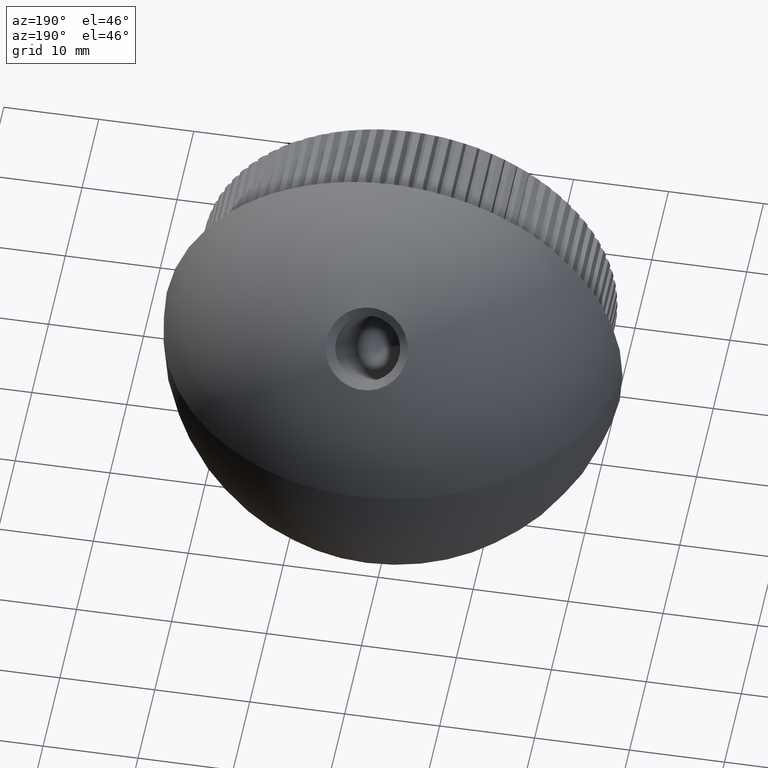
[diagram: clean part render]
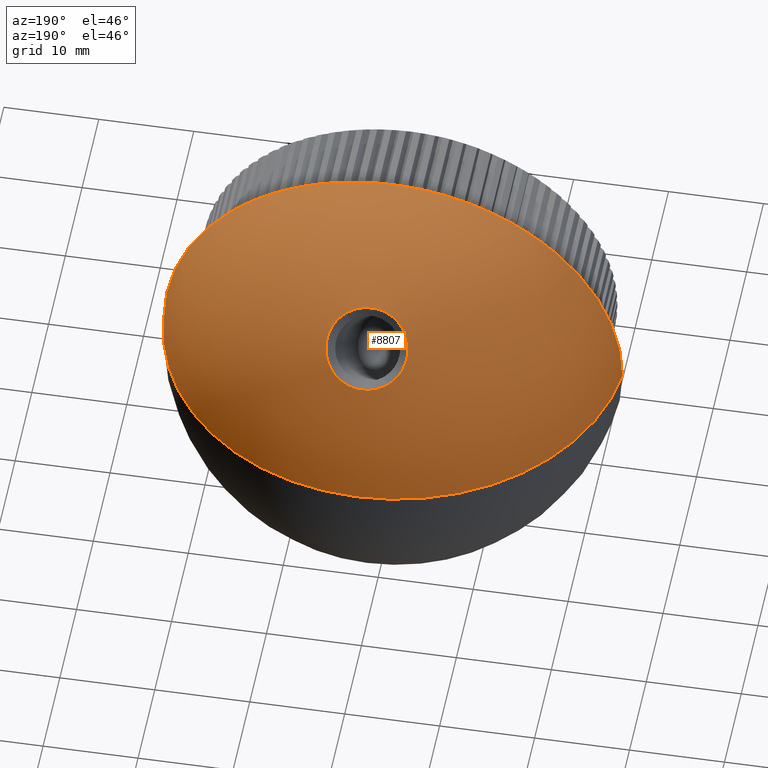
[diagram: same view with one face highlighted and labeled with its STEP entity id]
A machine part, auxiliary view. The second image highlights one B-rep face of the part: STEP entity #8807.
In plain terms, the highlighted spherical surface has radius 24.2551 mm.
Its self-contained STEP definition (entity closure, byte-faithful):
#33 = CARTESIAN_POINT ( 'NONE',  ( 0.06396000808462339000, 29.58473959694004700, 12.41317968367604000 ) ) ;
#41 = EDGE_LOOP ( 'NONE', ( #12607, #7142 ) ) ;
#122 = CARTESIAN_POINT ( 'NONE',  ( 3.385849470600867500, 24.98035092369791200, 17.69957835155297200 ) ) ;
#137 = AXIS2_PLACEMENT_3D ( 'NONE', #17972, #6600, #2979 ) ;
#292 = CARTESIAN_POINT ( 'NONE',  ( 3.297345926346658900, 24.90888121479206100, 17.78151869460589300 ) ) ;
#309 = CIRCLE ( 'NONE', #137, 24.14999999999999900 ) ;
#376 = CARTESIAN_POINT ( 'NONE',  ( -2.095271658431268900, 24.25705256769267800, 18.52867959444545000 ) ) ;
#834 = B_SPLINE_CURVE_WITH_KNOTS ( 'NONE', 3,
 ( #5625, #20869, #2089, #18725, #22518, #15336, #17077, #3911, #15020, #3988, #3760, #33, #1761, #13331, #3666, #7541, #17241, #9517, #20618, #11177, #2008, #24412, #13255, #13094, #20945, #5549, #1931, #18809, #7694, #15263, #9604, #20786, #15179, #9356, #7448, #17149, #20699, #5791, #16992, #13177, #22614, #11250, #24494, #1845, #22772, #9431, #15093, #18889, #22695, #7612, #3833, #22859, #5711, #18967, #11427, #122, #292, #9928, #11825, #17471 ),
 .UNSPECIFIED., .F., .F.,
 ( 4, 2, 2, 2, 2, 2, 2, 2, 2, 2, 2, 2, 2, 2, 2, 2, 2, 2, 2, 2, 2, 2, 2, 2, 2, 2, 2, 2, 2, 4 ),
 ( 0.0002891650422360298100, 0.03153918901903256900, 0.04716420100743086400, 0.06278921299582915200, 0.07841422498422742600, 0.09403923697262570000, 0.1252892609494221900, 0.1565392849262187100, 0.1877893089030152100, 0.2034143208914135100, 0.2112268268856125300, 0.2190393328798115300, 0.2502893568566075300, 0.2659143688450055800, 0.2737268748392045500, 0.2815393808334035200, 0.3127894048101989600, 0.3206019108043979800, 0.3284144167985969500, 0.3362269227927960300, 0.3440394287869950600, 0.3752894527637913300, 0.3831019587579903000, 0.3909144647521891600, 0.4065394767405873200, 0.4221644887289854300, 0.4377895007173834800, 0.4534145127057815900, 0.4690395246941797500, 0.5002895486709759700 ),
 .UNSPECIFIED. ) ;
#892 = SPHERICAL_SURFACE ( 'NONE', #10632, 24.25505681818181700 ) ;
#1101 = CARTESIAN_POINT ( 'NONE',  ( -3.009835994526920600, 28.78189510633475800, 13.33602762986384600 ) ) ;
#1265 = CARTESIAN_POINT ( 'NONE',  ( -4.255634156895891500, 27.19985814070828300, 15.15317016237359700 ) ) ;
#1353 = CARTESIAN_POINT ( 'NONE',  ( -3.835335611001223100, 25.44028997154293500, 17.17217840863929000 ) ) ;
#1362 = EDGE_CURVE ( 'NONE', #23694, #6599, #309, .T. ) ;
#1433 = CARTESIAN_POINT ( 'NONE',  ( -4.298168532005049300, 26.97059823266164400, 15.41635374875446900 ) ) ;
#1657 = DIRECTION ( 'NONE',  ( 1.000000000000000000, 0.0000000000000000000, -1.224646799147353500E-016 ) ) ;
#1761 = CARTESIAN_POINT ( 'NONE',  ( 0.3496317584474428200, 29.57563146170457800, 12.42365492636785300 ) ) ;
#1845 = CARTESIAN_POINT ( 'NONE',  ( 4.256179226310400100, 26.28457171904776500, 16.20367619151198500 ) ) ;
#1931 = CARTESIAN_POINT ( 'NONE',  ( 3.622988025002170000, 28.28278505394705500, 13.90950146017299900 ) ) ;
#2008 = CARTESIAN_POINT ( 'NONE',  ( 2.676282121115255200, 28.96680416818619400, 13.12351559193438700 ) ) ;
#2081 = FACE_OUTER_BOUND ( 'NONE', #3357, .T. ) ;
#2089 = CARTESIAN_POINT ( 'NONE',  ( -2.106197046934555700, 29.22442607509541900, 12.82740954978844500 ) ) ;
#2154 = ORIENTED_EDGE ( 'NONE', *, *, #14679, .T. ) ;
#2840 = VERTEX_POINT ( 'NONE', #19651 ) ;
#2923 = CARTESIAN_POINT ( 'NONE',  ( -3.624109006241724300, 25.19979183090059000, 17.44796872308581800 ) ) ;
#2953 = FACE_BOUND ( 'NONE', #41, .T. ) ;
#2979 = DIRECTION ( 'NONE',  ( 0.0000000000000000000, 0.0000000000000000000, -1.000000000000000000 ) ) ;
#3086 = CARTESIAN_POINT ( 'NONE',  ( -4.201419817119304200, 27.38080266415154200, 14.94542534119796800 ) ) ;
#3247 = CARTESIAN_POINT ( 'NONE',  ( -4.299223314783218600, 26.50582779492854300, 15.94978907659824300 ) ) ;
#3357 = EDGE_LOOP ( 'NONE', ( #7326, #2154, #21815 ) ) ;
#3666 = CARTESIAN_POINT ( 'NONE',  ( 1.179713620839066800, 29.47703723644549700, 12.53701566875182700 ) ) ;
#3760 = CARTESIAN_POINT ( 'NONE',  ( -0.3609526675612286800, 29.57049862251808700, 12.42955544415942400 ) ) ;
#3833 = CARTESIAN_POINT ( 'NONE',  ( 3.962663595058698400, 25.61803578517341500, 16.96832056525412500 ) ) ;
#3911 = CARTESIAN_POINT ( 'NONE',  ( -0.9166566047195821000, 29.51563179337599500, 12.49263779116108500 ) ) ;
#3988 = CARTESIAN_POINT ( 'NONE',  ( -0.4997583743947445800, 29.56132478462944500, 12.44010139627912500 ) ) ;
#4706 = DIRECTION ( 'NONE',  ( 0.0000000000000000000, 0.0000000000000000000, -1.000000000000000000 ) ) ;
#4788 = VERTEX_POINT ( 'NONE', #16937 ) ;
#4894 = CARTESIAN_POINT ( 'NONE',  ( -3.629397245437210100, 28.27636493573236400, 13.91687501319322200 ) ) ;
#4968 = EDGE_CURVE ( 'NONE', #4788, #23694, #6106, .T. ) ;
#4978 = CARTESIAN_POINT ( 'NONE',  ( -3.546637687126249700, 25.12350213749489200, 17.53544508771471700 ) ) ;
#5059 = CARTESIAN_POINT ( 'NONE',  ( -3.294942586545698500, 24.90000416985532500, 17.79170259291684900 ) ) ;
#5362 = CARTESIAN_POINT ( 'NONE',  ( 0.0000000000000000000, 8.744943181818182900, 0.0000000000000000000 ) ) ;
#5549 = CARTESIAN_POINT ( 'NONE',  ( 3.543274201555111500, 28.36104885134712500, 13.81958623420498700 ) ) ;
#5625 = CARTESIAN_POINT ( 'NONE',  ( -2.575412051545741500, 29.01728091067991500, 13.06550255539182900 ) ) ;
#5711 = CARTESIAN_POINT ( 'NONE',  ( 3.775083507062249900, 25.36600535241573700, 17.25736558641271800 ) ) ;
#5791 = CARTESIAN_POINT ( 'NONE',  ( 4.274501631833540900, 27.11607071839651800, 15.24936027048717700 ) ) ;
#6031 = CARTESIAN_POINT ( 'NONE',  ( -2.454432127121762600, 24.40419084654056900, 18.36004704181009100 ) ) ;
#6106 = CIRCLE ( 'NONE', #14602, 24.25505681818181700 ) ;
#6112 = CARTESIAN_POINT ( 'NONE',  ( 1.592139336015353300, 24.09500629815043400, 18.71438241902557200 ) ) ;
#6599 = VERTEX_POINT ( 'NONE', #23169 ) ;
#6600 = DIRECTION ( 'NONE',  ( -0.0000000000000000000, -1.000000000000000000, -0.0000000000000000000 ) ) ;
#6710 = CARTESIAN_POINT ( 'NONE',  ( -2.575412051545741500, 29.01728091067991500, 13.06550255539182900 ) ) ;
#6873 = CARTESIAN_POINT ( 'NONE',  ( -4.109117085973547700, 27.60609739322243400, 14.68673028044873700 ) ) ;
#6891 = B_SPLINE_CURVE_WITH_KNOTS ( 'NONE', 3,
 ( #17478, #21125, #9764, #6112, #15504, #19375, #8015, #9933, #23179, #11673, #23255, #10425, #376, #17410, #6031, #19297, #11760, #16312, #5059, #4978, #2923, #20033, #1353, #16401, #8845, #6953, #23924, #22107, #21856, #20206, #14433, #23997, #3247, #8601, #12672, #18235, #1433, #16234, #8918, #1265, #21941, #23836, #3086, #18308, #6873, #23750, #12745, #20116, #14356, #16152, #22190, #14609, #20295, #4894, #10839, #8770, #16485, #1101, #10754, #6710 ),
 .UNSPECIFIED., .F., .F.,
 ( 4, 2, 2, 2, 2, 2, 2, 2, 2, 2, 2, 2, 2, 2, 2, 2, 2, 2, 2, 2, 2, 2, 2, 2, 2, 2, 2, 2, 2, 4 ),
 ( 0.5002895486709759700, 0.5315395246941797500, 0.5627895007173834300, 0.6252894527637911100, 0.6565394287869950100, 0.6721644167985968400, 0.6877894048101986800, 0.7034143928218006300, 0.7190393808334024600, 0.7502893568566064700, 0.7659143448682084200, 0.7815393328798103700, 0.7971643208914123100, 0.8127893089030142600, 0.8206018029088151300, 0.8284142969146161000, 0.8440392849262177100, 0.8596642729378194400, 0.8674767669436205300, 0.8752892609494213900, 0.8831017549552222500, 0.8909142489610233400, 0.9065392369726248400, 0.9143517309784257000, 0.9221642249842265700, 0.9299767189900274300, 0.9377892129958282900, 0.9534142010074302400, 0.9690391890190321900, 1.000289165042236100 ),
 .UNSPECIFIED. ) ;
#6953 = CARTESIAN_POINT ( 'NONE',  ( -4.106813699364098900, 25.87121548401349700, 16.67791121465951000 ) ) ;
#7142 = ORIENTED_EDGE ( 'NONE', *, *, #12684, .T. ) ;
#7326 = ORIENTED_EDGE ( 'NONE', *, *, #4968, .F. ) ;
#7448 = CARTESIAN_POINT ( 'NONE',  ( 4.213395710869972900, 27.34567747918442400, 14.98575325050948900 ) ) ;
#7541 = CARTESIAN_POINT ( 'NONE',  ( 1.713896604310974500, 29.35188014620301200, 12.68088787787496900 ) ) ;
#7612 = CARTESIAN_POINT ( 'NONE',  ( 4.016064186618967500, 25.70365639427235700, 16.87011411835689500 ) ) ;
#7694 = CARTESIAN_POINT ( 'NONE',  ( 3.766282476442891300, 28.12374206268716700, 14.09219964744867700 ) ) ;
#7854 = EDGE_CURVE ( 'NONE', #21978, #2840, #834, .T. ) ;
#8015 = CARTESIAN_POINT ( 'NONE',  ( -0.06990573024943362600, 23.87675219451534400, 18.96447097749723600 ) ) ;
#8601 = CARTESIAN_POINT ( 'NONE',  ( -4.313427755305970600, 26.69295163043406300, 15.73503888354705900 ) ) ;
#8770 = CARTESIAN_POINT ( 'NONE',  ( -3.382686789689806100, 28.50359374892569500, 13.65581394023405300 ) ) ;
#8807 = ADVANCED_FACE ( 'NONE', ( #2953, #2081 ), #892, .T. ) ;
#8845 = CARTESIAN_POINT ( 'NONE',  ( -4.011477931104754400, 25.69591721365367200, 16.87899192471490700 ) ) ;
#8918 = CARTESIAN_POINT ( 'NONE',  ( -4.276316612863844600, 27.10709985562962000, 15.25965899684526400 ) ) ;
#9356 = CARTESIAN_POINT ( 'NONE',  ( 4.197814767405235500, 27.39092313882457600, 14.93380420142927500 ) ) ;
#9431 = CARTESIAN_POINT ( 'NONE',  ( 4.216959186712416300, 26.14732504207746500, 16.36114826640227400 ) ) ;
#9517 = CARTESIAN_POINT ( 'NONE',  ( 2.333144246642447700, 29.12951387485408700, 12.93650383283000800 ) ) ;
#9604 = CARTESIAN_POINT ( 'NONE',  ( 3.866210044264943400, 27.99852556466423100, 14.23603261336623800 ) ) ;
#9764 = CARTESIAN_POINT ( 'NONE',  ( 2.102028590120569500, 24.25431170639854300, 18.53182177880191600 ) ) ;
#9928 = CARTESIAN_POINT ( 'NONE',  ( 3.013603038541913900, 24.70146052428119900, 18.01931095185981500 ) ) ;
#9933 = CARTESIAN_POINT ( 'NONE',  ( -0.9091853169455220700, 23.95836224491385400, 18.87095707631329900 ) ) ;
#10425 = CARTESIAN_POINT ( 'NONE',  ( -1.968965621444745100, 24.21256288827120800, 18.57966235157509200 ) ) ;
#10632 = AXIS2_PLACEMENT_3D ( 'NONE', #22475, #11211, #15132 ) ;
#10754 = CARTESIAN_POINT ( 'NONE',  ( -2.804033596098221400, 28.90524630712347000, 13.19426979051344900 ) ) ;
#10839 = CARTESIAN_POINT ( 'NONE',  ( -3.551875316134165800, 28.35296818727603000, 13.82886957218369200 ) ) ;
#11177 = CARTESIAN_POINT ( 'NONE',  ( 2.620546722690792600, 28.99533786439683100, 13.09072206458341500 ) ) ;
#11211 = DIRECTION ( 'NONE',  ( 0.0000000000000000000, 0.0000000000000000000, 1.000000000000000000 ) ) ;
#11250 = CARTESIAN_POINT ( 'NONE',  ( 4.320265368999484300, 26.70170790373472900, 15.72499700074406600 ) ) ;
#11427 = CARTESIAN_POINT ( 'NONE',  ( 3.552435695853363400, 25.12905655967247800, 17.52907711358080400 ) ) ;
#11673 = CARTESIAN_POINT ( 'NONE',  ( -1.582623827509171100, 24.09743098260638000, 18.71160202127083800 ) ) ;
#11760 = CARTESIAN_POINT ( 'NONE',  ( -2.788343050793988400, 24.57282138805868900, 18.16676473701222200 ) ) ;
#11825 = CARTESIAN_POINT ( 'NONE',  ( 2.802748912472381400, 24.57484509526704700, 18.16444811168301900 ) ) ;
#12159 = DIRECTION ( 'NONE',  ( -1.000000000000000000, 0.0000000000000000000, 0.0000000000000000000 ) ) ;
#12607 = ORIENTED_EDGE ( 'NONE', *, *, #7854, .T. ) ;
#12672 = CARTESIAN_POINT ( 'NONE',  ( -4.313521419050783100, 26.78457999523333700, 15.62987469726177100 ) ) ;
#12684 = EDGE_CURVE ( 'NONE', #2840, #21978, #6891, .T. ) ;
#12715 = CARTESIAN_POINT ( 'NONE',  ( -2.575412051545741500, 29.01728091067991500, 13.06550255539182900 ) ) ;
#12745 = CARTESIAN_POINT ( 'NONE',  ( -4.012282779364261900, 27.78151584018591400, 14.48527581122954400 ) ) ;
#12981 = DIRECTION ( 'NONE',  ( 1.224646799147353200E-016, -0.0000000000000000000, 1.000000000000000000 ) ) ;
#13094 = CARTESIAN_POINT ( 'NONE',  ( 3.100711140508022500, 28.72192374886779800, 13.40494284556122700 ) ) ;
#13177 = CARTESIAN_POINT ( 'NONE',  ( 4.297251435015360800, 26.97796038740404600, 15.40790319620957800 ) ) ;
#13255 = CARTESIAN_POINT ( 'NONE',  ( 2.840662449513819500, 28.87672905264836800, 13.22703841953046600 ) ) ;
#13331 = CARTESIAN_POINT ( 'NONE',  ( 0.9065805747630382200, 29.52168726662121400, 12.48567319794330100 ) ) ;
#14356 = CARTESIAN_POINT ( 'NONE',  ( -3.931062771261770700, 27.90818347896204800, 14.33979815994345400 ) ) ;
#14433 = CARTESIAN_POINT ( 'NONE',  ( -4.253726091788327500, 26.27470553711661700, 16.21499750720142800 ) ) ;
#14602 = AXIS2_PLACEMENT_3D ( 'NONE', #19852, #4706, #12159 ) ;
#14609 = CARTESIAN_POINT ( 'NONE',  ( -3.772896285115884900, 28.11588935073072900, 14.10122082246894800 ) ) ;
#14679 = EDGE_CURVE ( 'NONE', #4788, #6599, #18789, .T. ) ;
#15020 = CARTESIAN_POINT ( 'NONE',  ( -0.7783610042402346900, 29.53385299360719800, 12.47168822576651500 ) ) ;
#15093 = CARTESIAN_POINT ( 'NONE',  ( 4.201221972790019500, 26.10082298235115800, 16.41450139742783100 ) ) ;
#15132 = DIRECTION ( 'NONE',  ( 1.000000000000000000, 0.0000000000000000000, 0.0000000000000000000 ) ) ;
#15179 = CARTESIAN_POINT ( 'NONE',  ( 4.111981791602930900, 27.61483280336803100, 14.67670799260278600 ) ) ;
#15263 = CARTESIAN_POINT ( 'NONE',  ( 3.833257141370323600, 28.04154281402771100, 14.18662056246753900 ) ) ;
#15336 = CARTESIAN_POINT ( 'NONE',  ( -1.326987502937226000, 29.44286795468410000, 12.57629078677951100 ) ) ;
#15504 = CARTESIAN_POINT ( 'NONE',  ( 1.328508626892064500, 24.03251346601692600, 18.78599317367527300 ) ) ;
#16152 = CARTESIAN_POINT ( 'NONE',  ( -3.870551465654783000, 27.99276292841766500, 14.24265111626794300 ) ) ;
#16234 = CARTESIAN_POINT ( 'NONE',  ( -4.284567898832660800, 27.06246549172917800, 15.31089716557445300 ) ) ;
#16312 = CARTESIAN_POINT ( 'NONE',  ( -3.103703581962725000, 24.76090042689491700, 17.95116987277659600 ) ) ;
#16401 = CARTESIAN_POINT ( 'NONE',  ( -3.957252604853099600, 25.60972430857865600, 16.97785099310780800 ) ) ;
#16485 = CARTESIAN_POINT ( 'NONE',  ( -3.294562733403104000, 28.57445892498106900, 13.57438929558914400 ) ) ;
#16874 = CARTESIAN_POINT ( 'NONE',  ( 24.14999999999999900, 11.00000000000000400, 0.0000000000000000000 ) ) ;
#16937 = CARTESIAN_POINT ( 'NONE',  ( 1.485193884776177600E-015, 33.00000000000000000, 0.0000000000000000000 ) ) ;
#16992 = CARTESIAN_POINT ( 'NONE',  ( 4.283208037068265000, 27.07026284804868200, 15.30194612656692100 ) ) ;
#17077 = CARTESIAN_POINT ( 'NONE',  ( -1.190765346201693400, 29.47018947081604200, 12.54487974677656000 ) ) ;
#17149 = CARTESIAN_POINT ( 'NONE',  ( 4.241279316196027200, 27.25424773535120300, 15.09072612597948300 ) ) ;
#17241 = CARTESIAN_POINT ( 'NONE',  ( 1.972590518672592900, 29.27137283758333200, 12.77344478988582000 ) ) ;
#17410 = CARTESIAN_POINT ( 'NONE',  ( -2.337061331923274500, 24.35252294904609400, 18.41926346453697900 ) ) ;
#17471 = CARTESIAN_POINT ( 'NONE',  ( 2.575252603285166100, 24.46320766767800200, 18.29240325476833800 ) ) ;
#17478 = CARTESIAN_POINT ( 'NONE',  ( 2.575252603285166100, 24.46320766767800200, 18.29240325476833800 ) ) ;
#17972 = CARTESIAN_POINT ( 'NONE',  ( 0.0000000000000000000, 11.00000000000000400, 0.0000000000000000000 ) ) ;
#18235 = CARTESIAN_POINT ( 'NONE',  ( -4.303297560897272300, 26.92433886535651400, 15.46945458750255900 ) ) ;
#18308 = CARTESIAN_POINT ( 'NONE',  ( -4.149591107642341300, 27.51795956511308100, 14.78793794852242800 ) ) ;
#18725 = CARTESIAN_POINT ( 'NONE',  ( -1.723332269065114700, 29.34415673368320700, 12.68977120395080300 ) ) ;
#18789 = CIRCLE ( 'NONE', #23442, 24.25505681818181700 ) ;
#18809 = CARTESIAN_POINT ( 'NONE',  ( 3.731439727816630900, 28.16406951615028500, 14.04587521085411300 ) ) ;
#18889 = CARTESIAN_POINT ( 'NONE',  ( 4.150650956385289800, 25.96683253177108200, 16.56822330432572000 ) ) ;
#18967 = CARTESIAN_POINT ( 'NONE',  ( 3.630986736684617400, 25.20686189643879900, 17.43986231879450300 ) ) ;
#19297 = CARTESIAN_POINT ( 'NONE',  ( -2.680458391310332800, 24.51458014906098600, 18.23352117949419700 ) ) ;
#19375 = CARTESIAN_POINT ( 'NONE',  ( 0.5032517156665393700, 23.89546992688069700, 18.94302121753045000 ) ) ;
#19651 = CARTESIAN_POINT ( 'NONE',  ( 2.575252603285166100, 24.46320766767800200, 18.29240325476833800 ) ) ;
#19852 = CARTESIAN_POINT ( 'NONE',  ( 0.0000000000000000000, 8.744943181818182900, 0.0000000000000000000 ) ) ;
#20033 = CARTESIAN_POINT ( 'NONE',  ( -3.769577820853423400, 25.35944173530195700, 17.26489338466728200 ) ) ;
#20116 = CARTESIAN_POINT ( 'NONE',  ( -3.958724070967210000, 27.86691944631633800, 14.38719063876623700 ) ) ;
#20206 = CARTESIAN_POINT ( 'NONE',  ( -4.241907085756768200, 26.23021153677537100, 16.26604877895206200 ) ) ;
#20295 = CARTESIAN_POINT ( 'NONE',  ( -3.739475126180579000, 28.15492763995718300, 14.05637782688788600 ) ) ;
#20618 = CARTESIAN_POINT ( 'NONE',  ( 2.450598162033681900, 29.07803649958887200, 12.99567456549000600 ) ) ;
#20699 = CARTESIAN_POINT ( 'NONE',  ( 4.253819856952587100, 27.20700309652283300, 15.14496748611031100 ) ) ;
#20786 = CARTESIAN_POINT ( 'NONE',  ( 4.015219592695026500, 27.79166197072782700, 14.47363203111354400 ) ) ;
#20869 = CARTESIAN_POINT ( 'NONE',  ( -2.346790158525251100, 29.12931568769047500, 12.93673511982852600 ) ) ;
#20945 = CARTESIAN_POINT ( 'NONE',  ( 3.293186209580995600, 28.58236947692391500, 13.56530605538349800 ) ) ;
#21125 = CARTESIAN_POINT ( 'NONE',  ( 2.347756688043601600, 24.35157036170650700, 18.42035823788960200 ) ) ;
#21815 = ORIENTED_EDGE ( 'NONE', *, *, #1362, .F. ) ;
#21856 = CARTESIAN_POINT ( 'NONE',  ( -4.214413535524547800, 26.13957003749279600, 16.37004591171751900 ) ) ;
#21941 = CARTESIAN_POINT ( 'NONE',  ( -4.243612549695469300, 27.24578769549830800, 15.10043934115930700 ) ) ;
#21978 = VERTEX_POINT ( 'NONE', #12715 ) ;
#22107 = CARTESIAN_POINT ( 'NONE',  ( -4.198941149056254000, 26.09432585286105100, 16.42195530145340500 ) ) ;
#22190 = CARTESIAN_POINT ( 'NONE',  ( -3.838898174541482100, 28.03429783107207000, 14.19494235853003700 ) ) ;
#22475 = CARTESIAN_POINT ( 'NONE',  ( 0.0000000000000000000, 8.744943181818182900, 0.0000000000000000000 ) ) ;
#22518 = CARTESIAN_POINT ( 'NONE',  ( -1.594973234203110000, 29.37936902906209400, 12.64929270854981200 ) ) ;
#22614 = CARTESIAN_POINT ( 'NONE',  ( 4.302659489964280900, 26.93050518668282200, 15.46237699162668000 ) ) ;
#22695 = CARTESIAN_POINT ( 'NONE',  ( 4.109822928037140800, 25.87750095895631100, 16.67070170247491100 ) ) ;
#22772 = CARTESIAN_POINT ( 'NONE',  ( 4.244279184912927300, 26.23878269166349900, 16.25621374097201900 ) ) ;
#22859 = CARTESIAN_POINT ( 'NONE',  ( 3.842398996204083900, 25.44939334453298900, 17.16173575981105900 ) ) ;
#23169 = CARTESIAN_POINT ( 'NONE',  ( -24.14999999999999900, 11.00000000000000400, 2.957522019940857900E-015 ) ) ;
#23179 = CARTESIAN_POINT ( 'NONE',  ( -1.184685987482854800, 24.00378574477691300, 18.81891121215373300 ) ) ;
#23255 = CARTESIAN_POINT ( 'NONE',  ( -1.712288744403571500, 24.13272932903506900, 18.67115536981391300 ) ) ;
#23442 = AXIS2_PLACEMENT_3D ( 'NONE', #5362, #12981, #1657 ) ;
#23694 = VERTEX_POINT ( 'NONE', #16874 ) ;
#23750 = CARTESIAN_POINT ( 'NONE',  ( -4.037615936090914700, 27.73816053025066400, 14.53506777361443100 ) ) ;
#23836 = CARTESIAN_POINT ( 'NONE',  ( -4.216315684281822100, 27.33675711470414200, 14.99599613972873200 ) ) ;
#23924 = CARTESIAN_POINT ( 'NONE',  ( -4.147251434898746100, 25.95884711339192200, 16.57738460253644800 ) ) ;
#23997 = CARTESIAN_POINT ( 'NONE',  ( -4.285394555306631000, 26.41415293628545400, 16.05498890131329000 ) ) ;
#24412 = CARTESIAN_POINT ( 'NONE',  ( 2.785914366191642300, 28.90775408126261300, 13.19138154300111600 ) ) ;
#24494 = CARTESIAN_POINT ( 'NONE',  ( 4.307050734448976600, 26.51377789381339800, 15.94067612580455200 ) ) ;